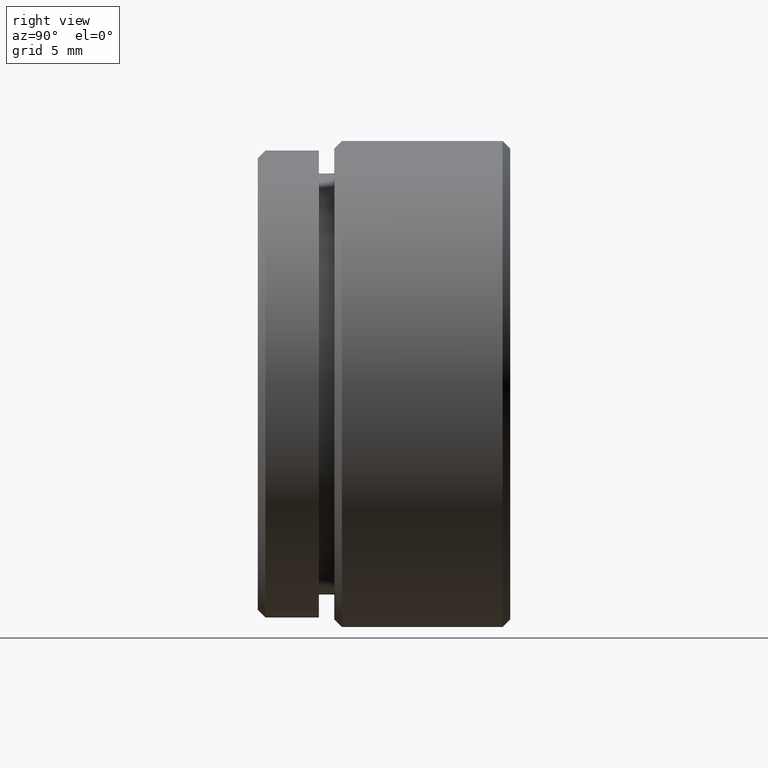
[diagram: clean part render]
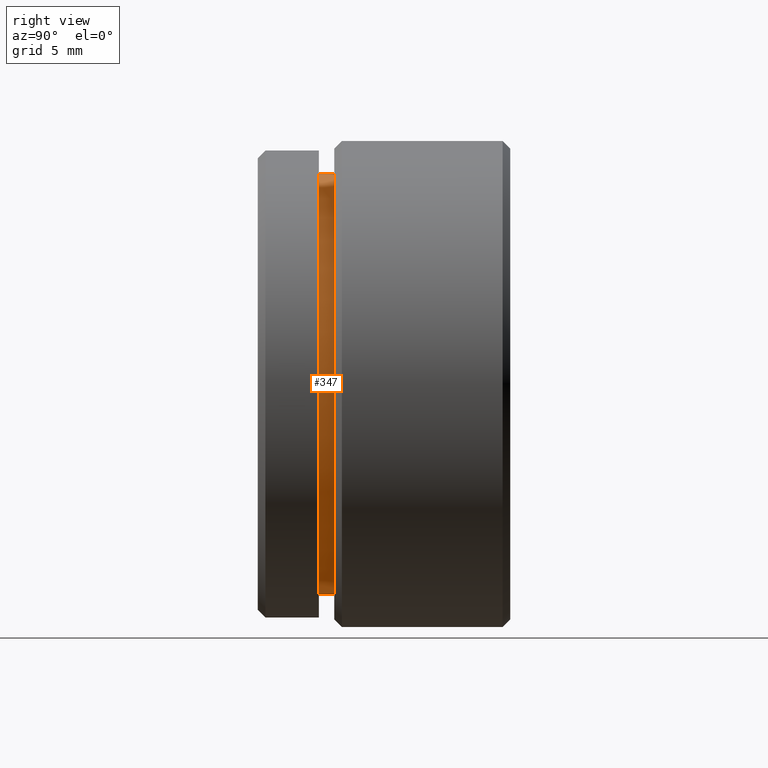
[diagram: same view with one face highlighted and labeled with its STEP entity id]
A machine part, right view. The second image highlights one B-rep face of the part: STEP entity #347.
In plain terms, the highlighted cylindrical surface (partial cylindrical patch) has radius 13.75 mm, axis along (-0, -1, -0).
Its self-contained STEP definition (entity closure, byte-faithful):
#6 = LINE ( 'NONE', #482, #239 ) ;
#129 = VECTOR ( 'NONE', #829, 1000.000000000000000 ) ;
#134 = CARTESIAN_POINT ( 'NONE',  ( 0.0000000000000000000, 0.0000000000000000000, 0.0000000000000000000 ) ) ;
#160 = LINE ( 'NONE', #355, #129 ) ;
#162 = DIRECTION ( 'NONE',  ( 0.0000000000000000000, 0.0000000000000000000, -1.000000000000000000 ) ) ;
#180 = DIRECTION ( 'NONE',  ( -0.0000000000000000000, -1.000000000000000000, -0.0000000000000000000 ) ) ;
#181 = CIRCLE ( 'NONE', #214, 13.75000000000000000 ) ;
#182 = CARTESIAN_POINT ( 'NONE',  ( 1.683889348827610700E-015, 4.000000000000000000, 13.75000000000000000 ) ) ;
#213 = EDGE_CURVE ( 'NONE', #681, #335, #160, .T. ) ;
#214 = AXIS2_PLACEMENT_3D ( 'NONE', #285, #257, #264 ) ;
#224 = VERTEX_POINT ( 'NONE', #356 ) ;
#238 = AXIS2_PLACEMENT_3D ( 'NONE', #134, #180, #162 ) ;
#239 = VECTOR ( 'NONE', #374, 1000.000000000000000 ) ;
#253 = EDGE_CURVE ( 'NONE', #604, #681, #181, .T. ) ;
#257 = DIRECTION ( 'NONE',  ( -0.0000000000000000000, -1.000000000000000000, -0.0000000000000000000 ) ) ;
#264 = DIRECTION ( 'NONE',  ( 0.0000000000000000000, 0.0000000000000000000, -1.000000000000000000 ) ) ;
#285 = CARTESIAN_POINT ( 'NONE',  ( 0.0000000000000000000, 5.000000000000000000, 0.0000000000000000000 ) ) ;
#331 = CARTESIAN_POINT ( 'NONE',  ( 0.0000000000000000000, 5.000000000000000000, -13.75000000000000000 ) ) ;
#335 = VERTEX_POINT ( 'NONE', #182 ) ;
#347 = ADVANCED_FACE ( 'NONE', ( #363 ), #561, .T. ) ;
#349 = ORIENTED_EDGE ( 'NONE', *, *, #532, .F. ) ;
#355 = CARTESIAN_POINT ( 'NONE',  ( 1.683889348827610700E-015, 0.0000000000000000000, 13.75000000000000000 ) ) ;
#356 = CARTESIAN_POINT ( 'NONE',  ( 0.0000000000000000000, 4.000000000000000000, -13.75000000000000000 ) ) ;
#363 = FACE_OUTER_BOUND ( 'NONE', #392, .T. ) ;
#374 = DIRECTION ( 'NONE',  ( -0.0000000000000000000, -1.000000000000000000, -0.0000000000000000000 ) ) ;
#392 = EDGE_LOOP ( 'NONE', ( #417, #656, #349, #555 ) ) ;
#417 = ORIENTED_EDGE ( 'NONE', *, *, #253, .T. ) ;
#482 = CARTESIAN_POINT ( 'NONE',  ( 0.0000000000000000000, 0.0000000000000000000, -13.75000000000000000 ) ) ;
#490 = CARTESIAN_POINT ( 'NONE',  ( 1.683889348827610700E-015, 5.000000000000000000, 13.75000000000000000 ) ) ;
#515 = AXIS2_PLACEMENT_3D ( 'NONE', #785, #777, #689 ) ;
#532 = EDGE_CURVE ( 'NONE', #224, #335, #536, .T. ) ;
#536 = CIRCLE ( 'NONE', #515, 13.75000000000000000 ) ;
#555 = ORIENTED_EDGE ( 'NONE', *, *, #772, .F. ) ;
#561 = CYLINDRICAL_SURFACE ( 'NONE', #238, 13.75000000000000000 ) ;
#604 = VERTEX_POINT ( 'NONE', #331 ) ;
#656 = ORIENTED_EDGE ( 'NONE', *, *, #213, .T. ) ;
#681 = VERTEX_POINT ( 'NONE', #490 ) ;
#689 = DIRECTION ( 'NONE',  ( 0.0000000000000000000, 0.0000000000000000000, -1.000000000000000000 ) ) ;
#772 = EDGE_CURVE ( 'NONE', #604, #224, #6, .T. ) ;
#777 = DIRECTION ( 'NONE',  ( -0.0000000000000000000, -1.000000000000000000, -0.0000000000000000000 ) ) ;
#785 = CARTESIAN_POINT ( 'NONE',  ( 0.0000000000000000000, 4.000000000000000000, 0.0000000000000000000 ) ) ;
#829 = DIRECTION ( 'NONE',  ( -0.0000000000000000000, -1.000000000000000000, -0.0000000000000000000 ) ) ;